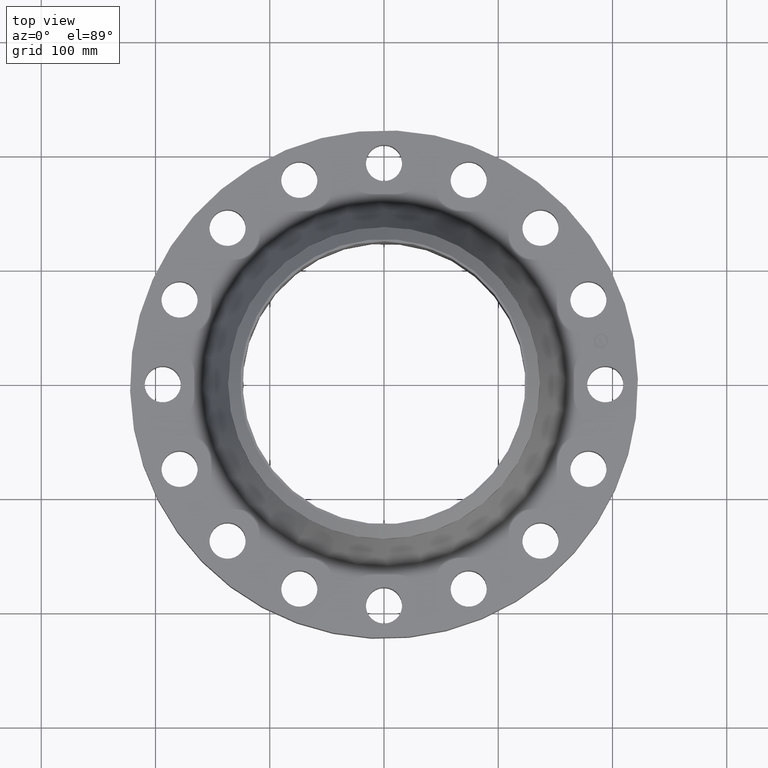
[diagram: clean part render]
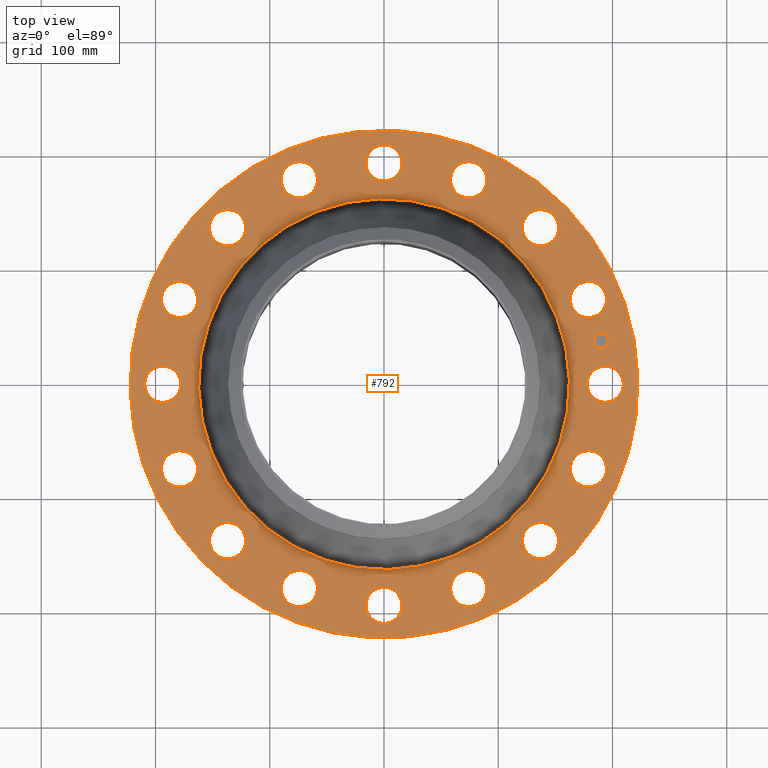
[diagram: same view with one face highlighted and labeled with its STEP entity id]
A machine part, top view. The second image highlights one B-rep face of the part: STEP entity #792.
In plain terms, the highlighted planar face has unit normal (0, 0, -1).
Its self-contained STEP definition (entity closure, byte-faithful):
#65=AXIS2_PLACEMENT_3D('Circle Axis2P3D',#63,#64,$) ;
#462=AXIS2_PLACEMENT_3D('Plane Axis2P3D',#459,#460,#461) ;
#466=AXIS2_PLACEMENT_3D('Circle Axis2P3D',#464,#465,$) ;
#475=AXIS2_PLACEMENT_3D('Circle Axis2P3D',#473,#474,$) ;
#488=AXIS2_PLACEMENT_3D('Circle Axis2P3D',#486,#487,$) ;
#497=AXIS2_PLACEMENT_3D('Circle Axis2P3D',#495,#496,$) ;
#506=AXIS2_PLACEMENT_3D('Circle Axis2P3D',#504,#505,$) ;
#515=AXIS2_PLACEMENT_3D('Circle Axis2P3D',#513,#514,$) ;
#524=AXIS2_PLACEMENT_3D('Circle Axis2P3D',#522,#523,$) ;
#533=AXIS2_PLACEMENT_3D('Circle Axis2P3D',#531,#532,$) ;
#542=AXIS2_PLACEMENT_3D('Circle Axis2P3D',#540,#541,$) ;
#551=AXIS2_PLACEMENT_3D('Circle Axis2P3D',#549,#550,$) ;
#560=AXIS2_PLACEMENT_3D('Circle Axis2P3D',#558,#559,$) ;
#569=AXIS2_PLACEMENT_3D('Circle Axis2P3D',#567,#568,$) ;
#578=AXIS2_PLACEMENT_3D('Circle Axis2P3D',#576,#577,$) ;
#587=AXIS2_PLACEMENT_3D('Circle Axis2P3D',#585,#586,$) ;
#596=AXIS2_PLACEMENT_3D('Circle Axis2P3D',#594,#595,$) ;
#605=AXIS2_PLACEMENT_3D('Circle Axis2P3D',#603,#604,$) ;
#614=AXIS2_PLACEMENT_3D('Circle Axis2P3D',#612,#613,$) ;
#623=AXIS2_PLACEMENT_3D('Circle Axis2P3D',#621,#622,$) ;
#632=AXIS2_PLACEMENT_3D('Circle Axis2P3D',#630,#631,$) ;
#641=AXIS2_PLACEMENT_3D('Circle Axis2P3D',#639,#640,$) ;
#650=AXIS2_PLACEMENT_3D('Circle Axis2P3D',#648,#649,$) ;
#659=AXIS2_PLACEMENT_3D('Circle Axis2P3D',#657,#658,$) ;
#668=AXIS2_PLACEMENT_3D('Circle Axis2P3D',#666,#667,$) ;
#677=AXIS2_PLACEMENT_3D('Circle Axis2P3D',#675,#676,$) ;
#686=AXIS2_PLACEMENT_3D('Circle Axis2P3D',#684,#685,$) ;
#695=AXIS2_PLACEMENT_3D('Circle Axis2P3D',#693,#694,$) ;
#704=AXIS2_PLACEMENT_3D('Circle Axis2P3D',#702,#703,$) ;
#713=AXIS2_PLACEMENT_3D('Circle Axis2P3D',#711,#712,$) ;
#722=AXIS2_PLACEMENT_3D('Circle Axis2P3D',#720,#721,$) ;
#731=AXIS2_PLACEMENT_3D('Circle Axis2P3D',#729,#730,$) ;
#740=AXIS2_PLACEMENT_3D('Circle Axis2P3D',#738,#739,$) ;
#749=AXIS2_PLACEMENT_3D('Circle Axis2P3D',#747,#748,$) ;
#758=AXIS2_PLACEMENT_3D('Circle Axis2P3D',#756,#757,$) ;
#767=AXIS2_PLACEMENT_3D('Circle Axis2P3D',#765,#766,$) ;
#776=AXIS2_PLACEMENT_3D('Circle Axis2P3D',#774,#775,$) ;
#785=AXIS2_PLACEMENT_3D('Circle Axis2P3D',#783,#784,$) ;
#46=CARTESIAN_POINT('Vertex',(7.07651089885,0.299640961629,2.11999999999)) ;
#60=CARTESIAN_POINT('Vertex',(8.17348910121,-0.299640961629,2.11999999999)) ;
#63=CARTESIAN_POINT('Axis2P3D Location',(7.62500000003,0.,2.11999999999)) ;
#106=CARTESIAN_POINT('Control Point',(8.17348910121,-0.29964096163,2.11999999999)) ;
#107=CARTESIAN_POINT('Control Point',(8.12642160902,-0.385797428173,2.11999999999)) ;
#108=CARTESIAN_POINT('Control Point',(8.06243733419,-0.462712214235,2.11999999999)) ;
#109=CARTESIAN_POINT('Control Point',(7.98394221948,-0.52594153441,2.11999999999)) ;
#110=CARTESIAN_POINT('Control Point',(7.80638932378,-0.618215345405,2.11999999999)) ;
#111=CARTESIAN_POINT('Control Point',(7.60712796093,-0.636501849751,2.12)) ;
#112=CARTESIAN_POINT('Control Point',(7.50691365197,-0.625707302913,2.12)) ;
#113=CARTESIAN_POINT('Control Point',(7.31611735792,-0.56540588383,2.12)) ;
#114=CARTESIAN_POINT('Control Point',(7.1622877858,-0.437437334159,2.12)) ;
#115=CARTESIAN_POINT('Control Point',(7.09905846562,-0.358942219446,2.12)) ;
#116=CARTESIAN_POINT('Control Point',(7.00678465462,-0.181389323752,2.12)) ;
#117=CARTESIAN_POINT('Control Point',(6.98849815028,0.0178720390944,2.12000000001)) ;
#118=CARTESIAN_POINT('Control Point',(6.99929269712,0.118086348064,2.12000000001)) ;
#119=CARTESIAN_POINT('Control Point',(7.02944340666,0.213484495086,2.12000000001)) ;
#120=CARTESIAN_POINT('Control Point',(7.07651089885,0.299640961629,2.12000000001)) ;
#459=CARTESIAN_POINT('Axis2P3D Location',(0.,8.75000000004,2.12000000001)) ;
#464=CARTESIAN_POINT('Axis2P3D Location',(-1.28132675074E-011,1.03336412043E-011,2.12000000001)) ;
#468=CARTESIAN_POINT('Vertex',(4.1949734628,7.67884741657,2.11999999999)) ;
#470=CARTESIAN_POINT('Vertex',(-4.1949734628,-7.67884741657,2.11999999999)) ;
#473=CARTESIAN_POINT('Axis2P3D Location',(1.28132675074E-011,-3.66461017262E-012,2.12000000001)) ;
#486=CARTESIAN_POINT('Axis2P3D Location',(4.36642498186E-011,-2.05195790368E-011,2.12000000001)) ;
#490=CARTESIAN_POINT('Vertex',(-3.06323934998,-5.60722201881,2.12000000001)) ;
#492=CARTESIAN_POINT('Vertex',(3.06323934998,5.60722201881,2.12000000001)) ;
#495=CARTESIAN_POINT('Axis2P3D Location',(-4.36642498186E-011,2.71886100685E-011,2.12000000001)) ;
#504=CARTESIAN_POINT('Axis2P3D Location',(7.04458143543,-2.91796117181,2.12000000001)) ;
#508=CARTESIAN_POINT('Vertex',(7.43665165818,-3.40469101521,2.12000000001)) ;
#510=CARTESIAN_POINT('Vertex',(6.65251121271,-2.43123132839,2.11999999999)) ;
#513=CARTESIAN_POINT('Axis2P3D Location',(7.04458143544,-2.91796117181,2.12000000001)) ;
#522=CARTESIAN_POINT('Axis2P3D Location',(5.39168920662,-5.39168920656,2.12000000001)) ;
#526=CARTESIAN_POINT('Vertex',(5.56765141354,-5.99140772533,2.12000000001)) ;
#528=CARTESIAN_POINT('Vertex',(5.2157269996,-4.79197068783,2.11999999999)) ;
#531=CARTESIAN_POINT('Axis2P3D Location',(5.39168920655,-5.39168920658,2.12000000001)) ;
#540=CARTESIAN_POINT('Axis2P3D Location',(2.91796117185,-7.04458143544,2.12000000001)) ;
#544=CARTESIAN_POINT('Vertex',(2.8510267121,-7.66598692152,2.12000000001)) ;
#546=CARTESIAN_POINT('Vertex',(2.9848956315,-6.42317594937,2.11999999999)) ;
#549=CARTESIAN_POINT('Axis2P3D Location',(2.91796117177,-7.04458143543,2.12000000001)) ;
#558=CARTESIAN_POINT('Axis2P3D Location',(-4.36652988483E-011,-7.625,2.12000000001)) ;
#562=CARTESIAN_POINT('Vertex',(-0.299640961629,-8.17348910121,2.11999999999)) ;
#564=CARTESIAN_POINT('Vertex',(0.299640961629,-7.07651089885,2.11999999999)) ;
#567=CARTESIAN_POINT('Axis2P3D Location',(4.36652988483E-011,-7.62500000005,2.12000000001)) ;
#576=CARTESIAN_POINT('Axis2P3D Location',(-2.91796117178,-7.04458143543,2.12000000001)) ;
#580=CARTESIAN_POINT('Vertex',(-3.40469101517,-7.43665165814,2.12000000001)) ;
#582=CARTESIAN_POINT('Vertex',(-2.43123132839,-6.65251121271,2.11999999999)) ;
#585=CARTESIAN_POINT('Axis2P3D Location',(-2.91796117178,-7.04458143543,2.12000000001)) ;
#594=CARTESIAN_POINT('Axis2P3D Location',(-5.39168920658,-5.39168920654,2.12000000001)) ;
#598=CARTESIAN_POINT('Vertex',(-5.9914077253,-5.5676514135,2.12000000001)) ;
#600=CARTESIAN_POINT('Vertex',(-4.79197068783,-5.2157269996,2.11999999999)) ;
#603=CARTESIAN_POINT('Axis2P3D Location',(-5.39168920656,-5.3916892066,2.12000000001)) ;
#612=CARTESIAN_POINT('Axis2P3D Location',(-7.04458143543,-2.91796117177,2.12000000001)) ;
#616=CARTESIAN_POINT('Vertex',(-7.66598692149,-2.85102671214,2.12000000001)) ;
#618=CARTESIAN_POINT('Vertex',(-6.42317594937,-2.9848956315,2.11999999999)) ;
#621=CARTESIAN_POINT('Axis2P3D Location',(-7.04458143543,-2.91796117178,2.12000000001)) ;
#630=CARTESIAN_POINT('Axis2P3D Location',(-7.62500000005,-4.03308532677E-011,2.12000000001)) ;
#634=CARTESIAN_POINT('Vertex',(-8.17348910121,0.299640961629,2.11999999999)) ;
#636=CARTESIAN_POINT('Vertex',(-7.07651089885,-0.299640961629,2.11999999999)) ;
#639=CARTESIAN_POINT('Axis2P3D Location',(-7.62500000001,4.69998842994E-011,2.12000000001)) ;
#648=CARTESIAN_POINT('Axis2P3D Location',(-7.04458143543,2.91796117182,2.12000000001)) ;
#652=CARTESIAN_POINT('Vertex',(-7.43665165818,3.40469101521,2.12000000001)) ;
#654=CARTESIAN_POINT('Vertex',(-6.65251121271,2.43123132839,2.11999999999)) ;
#657=CARTESIAN_POINT('Axis2P3D Location',(-7.04458143544,2.91796117181,2.12000000001)) ;
#666=CARTESIAN_POINT('Axis2P3D Location',(-5.39168920662,5.39168920657,2.12000000001)) ;
#670=CARTESIAN_POINT('Vertex',(-5.56765141354,5.99140772534,2.12000000001)) ;
#672=CARTESIAN_POINT('Vertex',(-5.2157269996,4.79197068783,2.11999999999)) ;
#675=CARTESIAN_POINT('Axis2P3D Location',(-5.39168920655,5.39168920659,2.12000000001)) ;
#684=CARTESIAN_POINT('Axis2P3D Location',(-2.91796117182,7.0445814354,2.12000000001)) ;
#688=CARTESIAN_POINT('Vertex',(-2.8510267121,7.66598692146,2.12000000001)) ;
#690=CARTESIAN_POINT('Vertex',(-2.9848956315,6.42317594937,2.11999999999)) ;
#693=CARTESIAN_POINT('Axis2P3D Location',(-2.91796117181,7.0445814354,2.12000000001)) ;
#702=CARTESIAN_POINT('Axis2P3D Location',(4.36652988483E-011,7.62500000001,2.12000000001)) ;
#706=CARTESIAN_POINT('Vertex',(0.299640961629,8.17348910121,2.11999999999)) ;
#708=CARTESIAN_POINT('Vertex',(-0.299640961629,7.07651089885,2.11999999999)) ;
#711=CARTESIAN_POINT('Axis2P3D Location',(-4.36652988483E-011,7.62500000006,2.12000000001)) ;
#720=CARTESIAN_POINT('Axis2P3D Location',(2.91796117178,7.04458143544,2.12000000001)) ;
#724=CARTESIAN_POINT('Vertex',(3.40469101517,7.43665165815,2.12000000001)) ;
#726=CARTESIAN_POINT('Vertex',(2.43123132839,6.65251121271,2.11999999999)) ;
#729=CARTESIAN_POINT('Axis2P3D Location',(2.91796117178,7.04458143544,2.12000000001)) ;
#738=CARTESIAN_POINT('Axis2P3D Location',(5.39168920658,5.39168920654,2.12000000001)) ;
#742=CARTESIAN_POINT('Vertex',(5.9914077253,5.56765141351,2.12000000001)) ;
#744=CARTESIAN_POINT('Vertex',(4.79197068783,5.2157269996,2.11999999999)) ;
#747=CARTESIAN_POINT('Axis2P3D Location',(5.39168920656,5.39168920661,2.12000000001)) ;
#756=CARTESIAN_POINT('Axis2P3D Location',(7.04458143544,2.91796117178,2.12000000001)) ;
#760=CARTESIAN_POINT('Vertex',(7.66598692149,2.85102671207,2.12000000001)) ;
#762=CARTESIAN_POINT('Vertex',(6.42317594937,2.9848956315,2.11999999999)) ;
#765=CARTESIAN_POINT('Axis2P3D Location',(7.04458143544,2.91796117178,2.12000000001)) ;
#774=CARTESIAN_POINT('Axis2P3D Location',(7.47848776313,1.48756370536,2.12000000001)) ;
#778=CARTESIAN_POINT('Vertex',(7.43020290839,1.73030806225,2.12000000001)) ;
#780=CARTESIAN_POINT('Vertex',(7.52677261778,1.24481934845,2.12000000001)) ;
#783=CARTESIAN_POINT('Axis2P3D Location',(7.47848776313,1.48756370536,2.12000000001)) ;
#64=DIRECTION('Axis2P3D Direction',(0.,-0.,-0.0393700787402)) ;
#460=DIRECTION('Axis2P3D Direction',(0.,0.,-0.0393700787402)) ;
#461=DIRECTION('Axis2P3D XDirection',(0.0393700787402,0.,0.)) ;
#465=DIRECTION('Axis2P3D Direction',(0.,0.,-0.0393700787402)) ;
#474=DIRECTION('Axis2P3D Direction',(0.,0.,-0.0393700787402)) ;
#487=DIRECTION('Axis2P3D Direction',(0.,0.,-0.0393700787402)) ;
#496=DIRECTION('Axis2P3D Direction',(0.,0.,-0.0393700787402)) ;
#505=DIRECTION('Axis2P3D Direction',(0.,0.,-0.0393700787402)) ;
#514=DIRECTION('Axis2P3D Direction',(0.,0.,-0.0393700787402)) ;
#523=DIRECTION('Axis2P3D Direction',(0.,0.,-0.0393700787402)) ;
#532=DIRECTION('Axis2P3D Direction',(0.,0.,-0.0393700787402)) ;
#541=DIRECTION('Axis2P3D Direction',(0.,0.,-0.0393700787402)) ;
#550=DIRECTION('Axis2P3D Direction',(0.,0.,-0.0393700787402)) ;
#559=DIRECTION('Axis2P3D Direction',(0.,0.,-0.0393700787402)) ;
#568=DIRECTION('Axis2P3D Direction',(0.,0.,-0.0393700787402)) ;
#577=DIRECTION('Axis2P3D Direction',(0.,0.,-0.0393700787402)) ;
#586=DIRECTION('Axis2P3D Direction',(0.,0.,-0.0393700787402)) ;
#595=DIRECTION('Axis2P3D Direction',(0.,0.,-0.0393700787402)) ;
#604=DIRECTION('Axis2P3D Direction',(0.,0.,-0.0393700787402)) ;
#613=DIRECTION('Axis2P3D Direction',(0.,0.,-0.0393700787402)) ;
#622=DIRECTION('Axis2P3D Direction',(0.,0.,-0.0393700787402)) ;
#631=DIRECTION('Axis2P3D Direction',(0.,0.,-0.0393700787402)) ;
#640=DIRECTION('Axis2P3D Direction',(0.,0.,-0.0393700787402)) ;
#649=DIRECTION('Axis2P3D Direction',(0.,0.,-0.0393700787402)) ;
#658=DIRECTION('Axis2P3D Direction',(0.,0.,-0.0393700787402)) ;
#667=DIRECTION('Axis2P3D Direction',(0.,0.,-0.0393700787402)) ;
#676=DIRECTION('Axis2P3D Direction',(0.,0.,-0.0393700787402)) ;
#685=DIRECTION('Axis2P3D Direction',(0.,0.,-0.0393700787402)) ;
#694=DIRECTION('Axis2P3D Direction',(0.,0.,-0.0393700787402)) ;
#703=DIRECTION('Axis2P3D Direction',(0.,0.,-0.0393700787402)) ;
#712=DIRECTION('Axis2P3D Direction',(0.,0.,-0.0393700787402)) ;
#721=DIRECTION('Axis2P3D Direction',(0.,0.,-0.0393700787402)) ;
#730=DIRECTION('Axis2P3D Direction',(0.,0.,-0.0393700787402)) ;
#739=DIRECTION('Axis2P3D Direction',(0.,0.,-0.0393700787402)) ;
#748=DIRECTION('Axis2P3D Direction',(0.,0.,-0.0393700787402)) ;
#757=DIRECTION('Axis2P3D Direction',(0.,0.,-0.0393700787402)) ;
#766=DIRECTION('Axis2P3D Direction',(0.,0.,-0.0393700787402)) ;
#775=DIRECTION('Axis2P3D Direction',(0.,0.,-0.0393700787402)) ;
#784=DIRECTION('Axis2P3D Direction',(0.,0.,-0.0393700787402)) ;
#479=ORIENTED_EDGE('',*,*,#472,.F.) ;
#480=ORIENTED_EDGE('',*,*,#477,.F.) ;
#483=ORIENTED_EDGE('',*,*,#67,.T.) ;
#484=ORIENTED_EDGE('',*,*,#121,.T.) ;
#501=ORIENTED_EDGE('',*,*,#494,.T.) ;
#502=ORIENTED_EDGE('',*,*,#499,.T.) ;
#519=ORIENTED_EDGE('',*,*,#512,.T.) ;
#520=ORIENTED_EDGE('',*,*,#517,.T.) ;
#537=ORIENTED_EDGE('',*,*,#530,.T.) ;
#538=ORIENTED_EDGE('',*,*,#535,.T.) ;
#555=ORIENTED_EDGE('',*,*,#548,.T.) ;
#556=ORIENTED_EDGE('',*,*,#553,.T.) ;
#573=ORIENTED_EDGE('',*,*,#566,.T.) ;
#574=ORIENTED_EDGE('',*,*,#571,.T.) ;
#591=ORIENTED_EDGE('',*,*,#584,.T.) ;
#592=ORIENTED_EDGE('',*,*,#589,.T.) ;
#609=ORIENTED_EDGE('',*,*,#602,.T.) ;
#610=ORIENTED_EDGE('',*,*,#607,.T.) ;
#627=ORIENTED_EDGE('',*,*,#620,.T.) ;
#628=ORIENTED_EDGE('',*,*,#625,.T.) ;
#645=ORIENTED_EDGE('',*,*,#638,.T.) ;
#646=ORIENTED_EDGE('',*,*,#643,.T.) ;
#663=ORIENTED_EDGE('',*,*,#656,.T.) ;
#664=ORIENTED_EDGE('',*,*,#661,.T.) ;
#681=ORIENTED_EDGE('',*,*,#674,.T.) ;
#682=ORIENTED_EDGE('',*,*,#679,.T.) ;
#699=ORIENTED_EDGE('',*,*,#692,.T.) ;
#700=ORIENTED_EDGE('',*,*,#697,.T.) ;
#717=ORIENTED_EDGE('',*,*,#710,.T.) ;
#718=ORIENTED_EDGE('',*,*,#715,.T.) ;
#735=ORIENTED_EDGE('',*,*,#728,.T.) ;
#736=ORIENTED_EDGE('',*,*,#733,.T.) ;
#753=ORIENTED_EDGE('',*,*,#746,.T.) ;
#754=ORIENTED_EDGE('',*,*,#751,.T.) ;
#771=ORIENTED_EDGE('',*,*,#764,.T.) ;
#772=ORIENTED_EDGE('',*,*,#769,.T.) ;
#789=ORIENTED_EDGE('',*,*,#782,.T.) ;
#790=ORIENTED_EDGE('',*,*,#787,.T.) ;
#485=FACE_BOUND('',#482,.T.) ;
#503=FACE_BOUND('',#500,.T.) ;
#521=FACE_BOUND('',#518,.T.) ;
#539=FACE_BOUND('',#536,.T.) ;
#557=FACE_BOUND('',#554,.T.) ;
#575=FACE_BOUND('',#572,.T.) ;
#593=FACE_BOUND('',#590,.T.) ;
#611=FACE_BOUND('',#608,.T.) ;
#629=FACE_BOUND('',#626,.T.) ;
#647=FACE_BOUND('',#644,.T.) ;
#665=FACE_BOUND('',#662,.T.) ;
#683=FACE_BOUND('',#680,.T.) ;
#701=FACE_BOUND('',#698,.T.) ;
#719=FACE_BOUND('',#716,.T.) ;
#737=FACE_BOUND('',#734,.T.) ;
#755=FACE_BOUND('',#752,.T.) ;
#773=FACE_BOUND('',#770,.T.) ;
#791=FACE_BOUND('',#788,.T.) ;
#792=ADVANCED_FACE('PartBody',(#481,#485,#503,#521,#539,#557,#575,#593,#611,#629,#647,#665,#683,#701,#719,#737,#755,#773,#791),#463,.F.) ;
#105=B_SPLINE_CURVE_WITH_KNOTS('',5,(#106,#107,#108,#109,#110,#111,#112,#113,#114,#115,#116,#117,#118,#119,#120),.UNSPECIFIED.,.F.,.U.,(6,3,3,3,6),(-24.9363916879,-12.468195844,0.,12.468195844,24.9363916879),.UNSPECIFIED.) ;
#66=CIRCLE('generated circle',#65,0.625000000002) ;
#467=CIRCLE('generated circle',#466,8.75000000003) ;
#476=CIRCLE('generated circle',#475,8.75000000003) ;
#489=CIRCLE('generated circle',#488,6.38939543962) ;
#498=CIRCLE('generated circle',#497,6.38939543962) ;
#507=CIRCLE('generated circle',#506,0.62500000001) ;
#516=CIRCLE('generated circle',#515,0.62500000001) ;
#525=CIRCLE('generated circle',#524,0.62500000002) ;
#534=CIRCLE('generated circle',#533,0.62500000002) ;
#543=CIRCLE('generated circle',#542,0.625000000032) ;
#552=CIRCLE('generated circle',#551,0.625000000032) ;
#561=CIRCLE('generated circle',#560,0.62499999997) ;
#570=CIRCLE('generated circle',#569,0.62499999997) ;
#579=CIRCLE('generated circle',#578,0.624999999987) ;
#588=CIRCLE('generated circle',#587,0.624999999987) ;
#597=CIRCLE('generated circle',#596,0.624999999985) ;
#606=CIRCLE('generated circle',#605,0.624999999985) ;
#615=CIRCLE('generated circle',#614,0.624999999992) ;
#624=CIRCLE('generated circle',#623,0.624999999992) ;
#633=CIRCLE('generated circle',#632,0.62500000002) ;
#642=CIRCLE('generated circle',#641,0.62500000002) ;
#651=CIRCLE('generated circle',#650,0.62500000001) ;
#660=CIRCLE('generated circle',#659,0.62500000001) ;
#669=CIRCLE('generated circle',#668,0.62500000002) ;
#678=CIRCLE('generated circle',#677,0.62500000002) ;
#687=CIRCLE('generated circle',#686,0.624999999996) ;
#696=CIRCLE('generated circle',#695,0.624999999996) ;
#705=CIRCLE('generated circle',#704,0.62499999997) ;
#714=CIRCLE('generated circle',#713,0.62499999997) ;
#723=CIRCLE('generated circle',#722,0.624999999987) ;
#732=CIRCLE('generated circle',#731,0.624999999987) ;
#741=CIRCLE('generated circle',#740,0.624999999985) ;
#750=CIRCLE('generated circle',#749,0.624999999985) ;
#759=CIRCLE('generated circle',#758,0.624999999996) ;
#768=CIRCLE('generated circle',#767,0.624999999996) ;
#777=CIRCLE('generated circle',#776,0.247499999999) ;
#786=CIRCLE('generated circle',#785,0.247499999999) ;
#67=EDGE_CURVE('',#47,#61,#66,.T.) ;
#121=EDGE_CURVE('',#61,#47,#105,.T.) ;
#472=EDGE_CURVE('',#469,#471,#467,.T.) ;
#477=EDGE_CURVE('',#471,#469,#476,.T.) ;
#494=EDGE_CURVE('',#491,#493,#489,.T.) ;
#499=EDGE_CURVE('',#493,#491,#498,.T.) ;
#512=EDGE_CURVE('',#509,#511,#507,.T.) ;
#517=EDGE_CURVE('',#511,#509,#516,.T.) ;
#530=EDGE_CURVE('',#527,#529,#525,.T.) ;
#535=EDGE_CURVE('',#529,#527,#534,.T.) ;
#548=EDGE_CURVE('',#545,#547,#543,.T.) ;
#553=EDGE_CURVE('',#547,#545,#552,.T.) ;
#566=EDGE_CURVE('',#563,#565,#561,.T.) ;
#571=EDGE_CURVE('',#565,#563,#570,.T.) ;
#584=EDGE_CURVE('',#581,#583,#579,.T.) ;
#589=EDGE_CURVE('',#583,#581,#588,.T.) ;
#602=EDGE_CURVE('',#599,#601,#597,.T.) ;
#607=EDGE_CURVE('',#601,#599,#606,.T.) ;
#620=EDGE_CURVE('',#617,#619,#615,.T.) ;
#625=EDGE_CURVE('',#619,#617,#624,.T.) ;
#638=EDGE_CURVE('',#635,#637,#633,.T.) ;
#643=EDGE_CURVE('',#637,#635,#642,.T.) ;
#656=EDGE_CURVE('',#653,#655,#651,.T.) ;
#661=EDGE_CURVE('',#655,#653,#660,.T.) ;
#674=EDGE_CURVE('',#671,#673,#669,.T.) ;
#679=EDGE_CURVE('',#673,#671,#678,.T.) ;
#692=EDGE_CURVE('',#689,#691,#687,.T.) ;
#697=EDGE_CURVE('',#691,#689,#696,.T.) ;
#710=EDGE_CURVE('',#707,#709,#705,.T.) ;
#715=EDGE_CURVE('',#709,#707,#714,.T.) ;
#728=EDGE_CURVE('',#725,#727,#723,.T.) ;
#733=EDGE_CURVE('',#727,#725,#732,.T.) ;
#746=EDGE_CURVE('',#743,#745,#741,.T.) ;
#751=EDGE_CURVE('',#745,#743,#750,.T.) ;
#764=EDGE_CURVE('',#761,#763,#759,.T.) ;
#769=EDGE_CURVE('',#763,#761,#768,.T.) ;
#782=EDGE_CURVE('',#779,#781,#777,.T.) ;
#787=EDGE_CURVE('',#781,#779,#786,.T.) ;
#478=EDGE_LOOP('',(#479,#480)) ;
#482=EDGE_LOOP('',(#483,#484)) ;
#500=EDGE_LOOP('',(#501,#502)) ;
#518=EDGE_LOOP('',(#519,#520)) ;
#536=EDGE_LOOP('',(#537,#538)) ;
#554=EDGE_LOOP('',(#555,#556)) ;
#572=EDGE_LOOP('',(#573,#574)) ;
#590=EDGE_LOOP('',(#591,#592)) ;
#608=EDGE_LOOP('',(#609,#610)) ;
#626=EDGE_LOOP('',(#627,#628)) ;
#644=EDGE_LOOP('',(#645,#646)) ;
#662=EDGE_LOOP('',(#663,#664)) ;
#680=EDGE_LOOP('',(#681,#682)) ;
#698=EDGE_LOOP('',(#699,#700)) ;
#716=EDGE_LOOP('',(#717,#718)) ;
#734=EDGE_LOOP('',(#735,#736)) ;
#752=EDGE_LOOP('',(#753,#754)) ;
#770=EDGE_LOOP('',(#771,#772)) ;
#788=EDGE_LOOP('',(#789,#790)) ;
#481=FACE_OUTER_BOUND('',#478,.T.) ;
#463=PLANE('',#462) ;
#47=VERTEX_POINT('',#46) ;
#61=VERTEX_POINT('',#60) ;
#469=VERTEX_POINT('',#468) ;
#471=VERTEX_POINT('',#470) ;
#491=VERTEX_POINT('',#490) ;
#493=VERTEX_POINT('',#492) ;
#509=VERTEX_POINT('',#508) ;
#511=VERTEX_POINT('',#510) ;
#527=VERTEX_POINT('',#526) ;
#529=VERTEX_POINT('',#528) ;
#545=VERTEX_POINT('',#544) ;
#547=VERTEX_POINT('',#546) ;
#563=VERTEX_POINT('',#562) ;
#565=VERTEX_POINT('',#564) ;
#581=VERTEX_POINT('',#580) ;
#583=VERTEX_POINT('',#582) ;
#599=VERTEX_POINT('',#598) ;
#601=VERTEX_POINT('',#600) ;
#617=VERTEX_POINT('',#616) ;
#619=VERTEX_POINT('',#618) ;
#635=VERTEX_POINT('',#634) ;
#637=VERTEX_POINT('',#636) ;
#653=VERTEX_POINT('',#652) ;
#655=VERTEX_POINT('',#654) ;
#671=VERTEX_POINT('',#670) ;
#673=VERTEX_POINT('',#672) ;
#689=VERTEX_POINT('',#688) ;
#691=VERTEX_POINT('',#690) ;
#707=VERTEX_POINT('',#706) ;
#709=VERTEX_POINT('',#708) ;
#725=VERTEX_POINT('',#724) ;
#727=VERTEX_POINT('',#726) ;
#743=VERTEX_POINT('',#742) ;
#745=VERTEX_POINT('',#744) ;
#761=VERTEX_POINT('',#760) ;
#763=VERTEX_POINT('',#762) ;
#779=VERTEX_POINT('',#778) ;
#781=VERTEX_POINT('',#780) ;